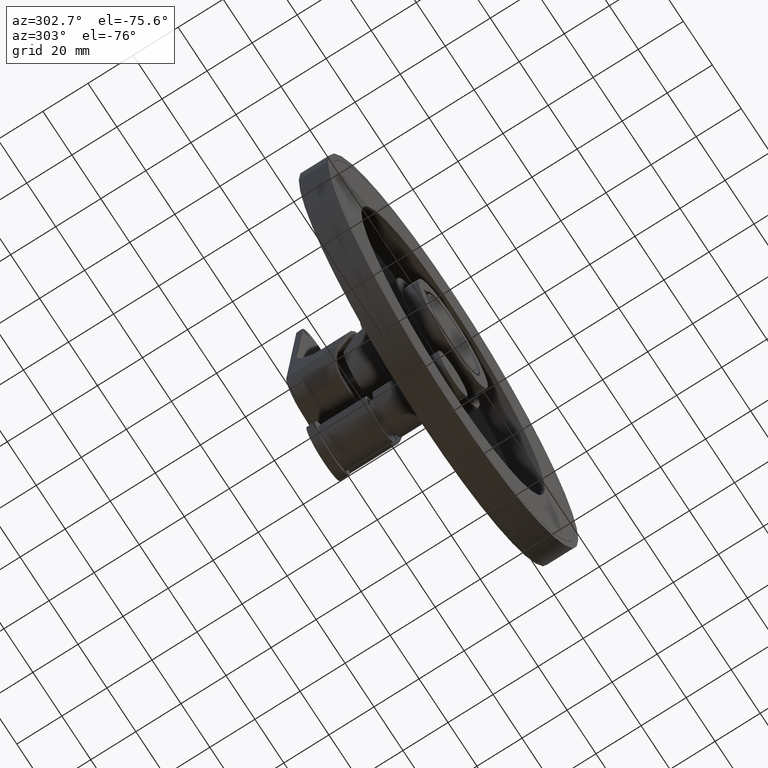
[diagram: clean part render]
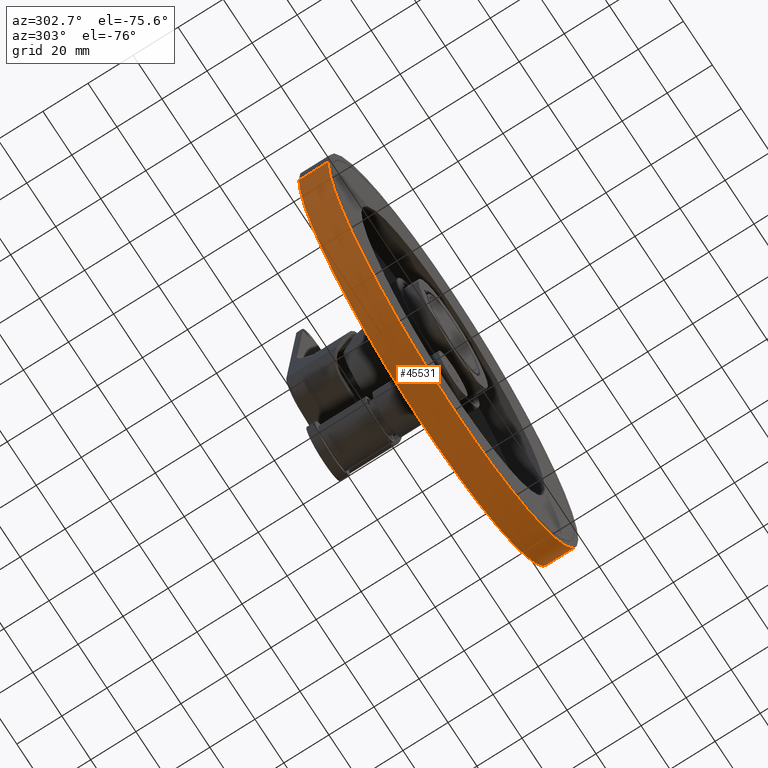
[diagram: same view with one face highlighted and labeled with its STEP entity id]
A machine part, auxiliary view. The second image highlights one B-rep face of the part: STEP entity #45531.
In plain terms, the highlighted cylindrical surface (partial cylindrical patch) has radius 86.5 mm, axis along (0, 1, 0).
Its self-contained STEP definition (entity closure, byte-faithful):
#44522=CARTESIAN_POINT('',(0.E0,6.65E1,-2.5E-1));
#44523=DIRECTION('',(0.E0,1.E0,0.E0));
#44524=DIRECTION('',(1.E0,0.E0,0.E0));
#44525=AXIS2_PLACEMENT_3D('',#44522,#44523,#44524);
#44552=DIRECTION('',(0.E0,1.E0,0.E0));
#44553=VECTOR('',#44552,1.3E1);
#44554=CARTESIAN_POINT('',(8.65E1,5.35E1,-2.5E-1));
#44555=LINE('',#44554,#44553);
#44556=CARTESIAN_POINT('',(0.E0,5.35E1,-2.5E-1));
#44557=DIRECTION('',(0.E0,1.E0,0.E0));
#44558=DIRECTION('',(1.E0,0.E0,0.E0));
#44559=AXIS2_PLACEMENT_3D('',#44556,#44557,#44558);
#44576=DIRECTION('',(0.E0,1.E0,0.E0));
#44577=VECTOR('',#44576,1.3E1);
#44578=CARTESIAN_POINT('',(-8.65E1,5.35E1,-2.5E-1));
#44579=LINE('',#44578,#44577);
#45094=CARTESIAN_POINT('',(8.65E1,5.35E1,-2.5E-1));
#45095=CARTESIAN_POINT('',(-8.65E1,5.35E1,-2.5E-1));
#45096=VERTEX_POINT('',#45094);
#45097=VERTEX_POINT('',#45095);
#45098=CARTESIAN_POINT('',(8.65E1,6.65E1,-2.5E-1));
#45099=CARTESIAN_POINT('',(-8.65E1,6.65E1,-2.5E-1));
#45100=VERTEX_POINT('',#45098);
#45101=VERTEX_POINT('',#45099);
#45517=CARTESIAN_POINT('',(0.E0,5.35E1,-2.5E-1));
#45518=DIRECTION('',(0.E0,1.E0,0.E0));
#45519=DIRECTION('',(1.E0,0.E0,0.E0));
#45520=AXIS2_PLACEMENT_3D('',#45517,#45518,#45519);
#45521=CYLINDRICAL_SURFACE('',#45520,8.65E1);
#45523=ORIENTED_EDGE('',*,*,#45522,.F.);
#45525=ORIENTED_EDGE('',*,*,#45524,.T.);
#45526=ORIENTED_EDGE('',*,*,#45493,.T.);
#45528=ORIENTED_EDGE('',*,*,#45527,.F.);
#45529=EDGE_LOOP('',(#45523,#45525,#45526,#45528));
#45530=FACE_OUTER_BOUND('',#45529,.F.);
#45531=ADVANCED_FACE('',(#45530),#45521,.T.);
#44526=CIRCLE('',#44525,8.65E1);
#44560=CIRCLE('',#44559,8.65E1);
#45493=EDGE_CURVE('',#45100,#45101,#44526,.T.);
#45522=EDGE_CURVE('',#45096,#45097,#44560,.T.);
#45524=EDGE_CURVE('',#45096,#45100,#44555,.T.);
#45527=EDGE_CURVE('',#45097,#45101,#44579,.T.);